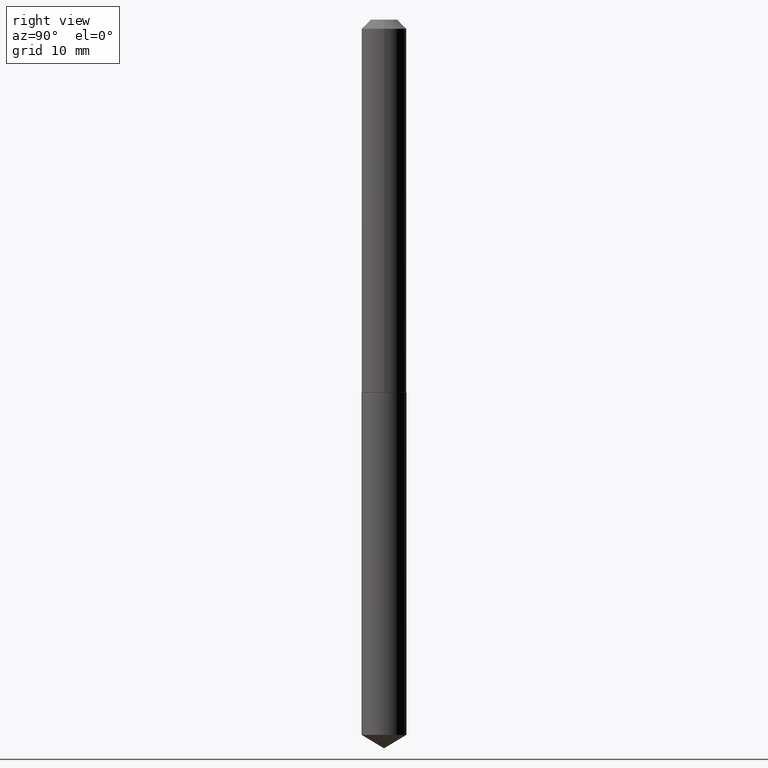
[diagram: clean part render]
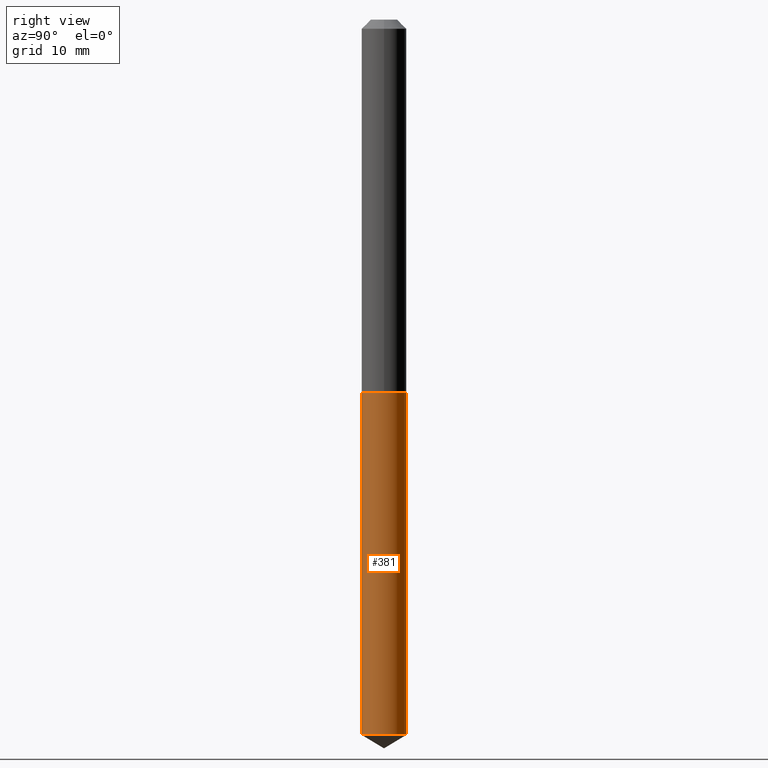
[diagram: same view with one face highlighted and labeled with its STEP entity id]
A machine part, right view. The second image highlights one B-rep face of the part: STEP entity #381.
In plain terms, the highlighted cylindrical surface (edge-blend (fillet) strip) has radius 1.9558 mm, axis along (-0, 0, 1).
Its self-contained STEP definition (entity closure, byte-faithful):
#2 = CARTESIAN_POINT ( 'NONE',  ( 5.471179065353372867E-16, 0.07699999999999551648, -1.279000000000000581 ) ) ;
#8 = ORIENTED_EDGE ( 'NONE', *, *, #277, .T. ) ;
#23 = CARTESIAN_POINT ( 'NONE',  ( 3.127754603110790340E-29, -4.465604632380384411E-15, -1.279000000000000137 ) ) ;
#32 = VECTOR ( 'NONE', #297, 39.37007874015748143 ) ;
#45 = AXIS2_PLACEMENT_3D ( 'NONE', #187, #155, #131 ) ;
#62 = LINE ( 'NONE', #273, #32 ) ;
#95 = EDGE_CURVE ( 'NONE', #195, #127, #356, .T. ) ;
#105 = DIRECTION ( 'NONE',  ( -6.982962677686266711E-15, -1.000000000000000000, 3.547854537226316370E-15 ) ) ;
#109 = AXIS2_PLACEMENT_3D ( 'NONE', #377, #369, #105 ) ;
#116 = EDGE_CURVE ( 'NONE', #127, #190, #247, .T. ) ;
#118 = VERTEX_POINT ( 'NONE', #347 ) ;
#127 = VERTEX_POINT ( 'NONE', #137 ) ;
#131 = DIRECTION ( 'NONE',  ( -6.982962677686266711E-15, -1.000000000000000000, 3.547854537226316370E-15 ) ) ;
#137 = CARTESIAN_POINT ( 'NONE',  ( -5.376881261818110691E-16, -0.07700000000000446765, -1.278999999999999915 ) ) ;
#142 = DIRECTION ( 'NONE',  ( -2.445605172219321034E-29, 3.491286054920720957E-15, 1.000000000000000000 ) ) ;
#155 = DIRECTION ( 'NONE',  ( -2.445605172219321034E-29, 3.491286054920720957E-15, 1.000000000000000000 ) ) ;
#182 = VECTOR ( 'NONE', #321, 39.37007874015748143 ) ;
#187 = CARTESIAN_POINT ( 'NONE',  ( 3.127754603110790340E-29, -4.465604632380384411E-15, -1.279000000000000137 ) ) ;
#189 = CYLINDRICAL_SURFACE ( 'NONE', #45, 0.07699999999999998512 ) ;
#190 = VERTEX_POINT ( 'NONE', #2 ) ;
#195 = VERTEX_POINT ( 'NONE', #390 ) ;
#215 = ORIENTED_EDGE ( 'NONE', *, *, #95, .F. ) ;
#234 = CARTESIAN_POINT ( 'NONE',  ( -5.376881261818110691E-16, -0.07700000000000446765, -1.278999999999999915 ) ) ;
#235 = CIRCLE ( 'NONE', #109, 0.07699999999999998512 ) ;
#247 = CIRCLE ( 'NONE', #384, 0.07699999999999998512 ) ;
#252 = EDGE_LOOP ( 'NONE', ( #294, #8, #280, #215 ) ) ;
#253 = FACE_OUTER_BOUND ( 'NONE', #252, .T. ) ;
#273 = CARTESIAN_POINT ( 'NONE',  ( 5.471179065353082960E-16, 0.07699999999999551648, -1.279000000000000581 ) ) ;
#277 = EDGE_CURVE ( 'NONE', #118, #190, #62, .T. ) ;
#280 = ORIENTED_EDGE ( 'NONE', *, *, #116, .F. ) ;
#294 = ORIENTED_EDGE ( 'NONE', *, *, #344, .T. ) ;
#297 = DIRECTION ( 'NONE',  ( -2.445605172219321314E-29, 3.491286054920720957E-15, 1.000000000000000000 ) ) ;
#320 = DIRECTION ( 'NONE',  ( -6.982962677686266711E-15, -1.000000000000000000, 3.547854537226316370E-15 ) ) ;
#321 = DIRECTION ( 'NONE',  ( -2.445605172219321314E-29, 3.491286054920720957E-15, 1.000000000000000000 ) ) ;
#344 = EDGE_CURVE ( 'NONE', #195, #118, #235, .T. ) ;
#347 = CARTESIAN_POINT ( 'NONE',  ( 5.471179065353369908E-16, 0.07699999999999142253, -2.453733732334878681 ) ) ;
#356 = LINE ( 'NONE', #234, #182 ) ;
#369 = DIRECTION ( 'NONE',  ( -2.445605172219321034E-29, 3.491286054920720957E-15, 1.000000000000000000 ) ) ;
#377 = CARTESIAN_POINT ( 'NONE',  ( 6.000689494889475679E-29, -8.566936130326114542E-15, -2.453733732334878237 ) ) ;
#381 = ADVANCED_FACE ( 'NONE', ( #253 ), #189, .T. ) ;
#384 = AXIS2_PLACEMENT_3D ( 'NONE', #23, #142, #320 ) ;
#390 = CARTESIAN_POINT ( 'NONE',  ( -5.376881261817823742E-16, -0.07700000000000856160, -2.453733732334877793 ) ) ;